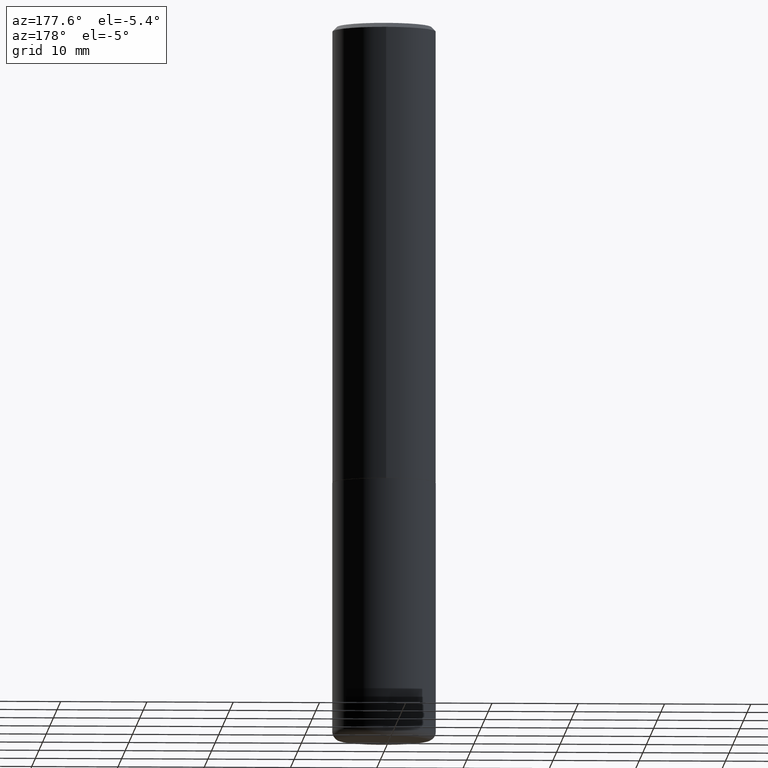
[diagram: clean part render]
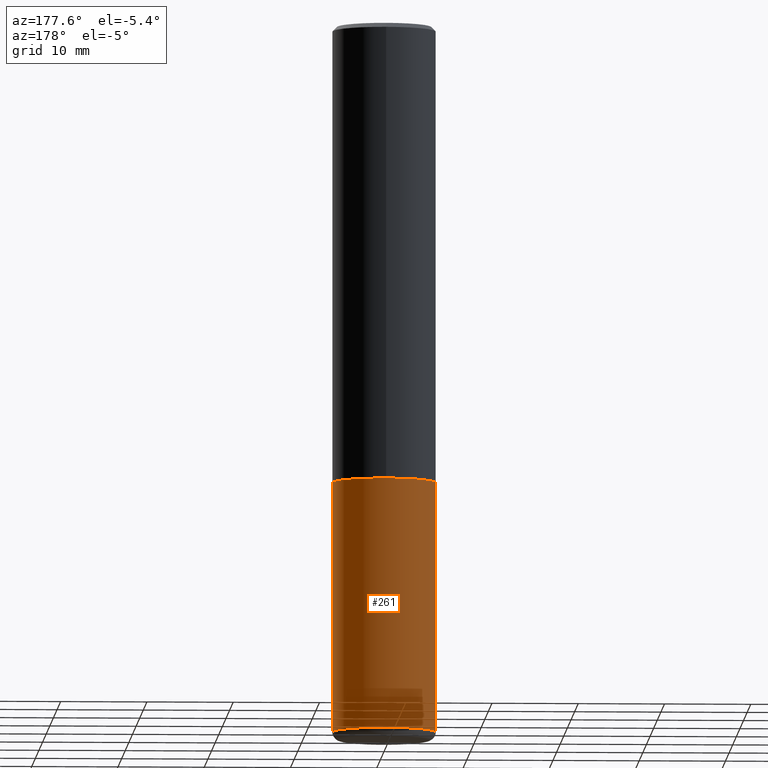
[diagram: same view with one face highlighted and labeled with its STEP entity id]
A machine part, auxiliary view. The second image highlights one B-rep face of the part: STEP entity #261.
In plain terms, the highlighted cylindrical surface (partial cylindrical patch) has radius 5.9995 mm, axis along (-0, 0, 1).
Its self-contained STEP definition (entity closure, byte-faithful):
#11 = DIRECTION ( 'NONE',  ( 1.000000000000000000, -6.982962677686265133E-15, 0.000000000000000000 ) ) ;
#20 = AXIS2_PLACEMENT_3D ( 'NONE', #286, #373, #220 ) ;
#24 = CARTESIAN_POINT ( 'NONE',  ( 0.2362000000000000210, -1.292092499065682375E-14, -3.228299999999999947 ) ) ;
#49 = DIRECTION ( 'NONE',  ( -2.445468806185136597E-29, 3.491481338843145583E-15, 1.000000000000000000 ) ) ;
#53 = VERTEX_POINT ( 'NONE', #88 ) ;
#63 = CARTESIAN_POINT ( 'NONE',  ( 0.2361999999999999933, -1.649375784469496131E-15, 1.151752954443000088E-29 ) ) ;
#65 = AXIS2_PLACEMENT_3D ( 'NONE', #91, #274, #11 ) ;
#67 = DIRECTION ( 'NONE',  ( -2.445468806185136877E-29, 3.491481338843145188E-15, 1.000000000000000000 ) ) ;
#69 = CARTESIAN_POINT ( 'NONE',  ( -0.2362000000000000210, -9.593247264321970832E-15, -3.228299999999999947 ) ) ;
#87 = CARTESIAN_POINT ( 'NONE',  ( -0.2361999999999999933, -7.600135142043360927E-15, -2.086600000000000232 ) ) ;
#88 = CARTESIAN_POINT ( 'NONE',  ( 0.2361999999999999933, -8.934700746099602364E-15, -2.086600000000000232 ) ) ;
#91 = CARTESIAN_POINT ( 'NONE',  ( 7.894706947007477118E-29, -1.127154920618732880E-14, -3.228299999999999947 ) ) ;
#94 = CARTESIAN_POINT ( 'NONE',  ( -0.2361999999999999933, 1.678301941865356591E-15, -1.161852468318208757E-29 ) ) ;
#104 = DIRECTION ( 'NONE',  ( -2.445468806185136877E-29, 3.491481338843145188E-15, 1.000000000000000000 ) ) ;
#117 = ORIENTED_EDGE ( 'NONE', *, *, #380, .F. ) ;
#134 = ORIENTED_EDGE ( 'NONE', *, *, #404, .F. ) ;
#167 = VECTOR ( 'NONE', #104, 39.37007874015748143 ) ;
#196 = EDGE_LOOP ( 'NONE', ( #327, #276, #134, #117 ) ) ;
#198 = CIRCLE ( 'NONE', #20, 0.2361999999999999933 ) ;
#220 = DIRECTION ( 'NONE',  ( 1.000000000000000000, -6.982962677686265133E-15, 0.000000000000000000 ) ) ;
#234 = FACE_OUTER_BOUND ( 'NONE', #196, .T. ) ;
#244 = AXIS2_PLACEMENT_3D ( 'NONE', #258, #49, #384 ) ;
#258 = CARTESIAN_POINT ( 'NONE',  ( 0.000000000000000000, 0.000000000000000000, 0.000000000000000000 ) ) ;
#261 = ADVANCED_FACE ( 'NONE', ( #234 ), #326, .T. ) ;
#263 = VERTEX_POINT ( 'NONE', #69 ) ;
#274 = DIRECTION ( 'NONE',  ( -2.445468806185136597E-29, 3.491481338843145583E-15, 1.000000000000000000 ) ) ;
#276 = ORIENTED_EDGE ( 'NONE', *, *, #386, .T. ) ;
#281 = LINE ( 'NONE', #63, #301 ) ;
#283 = EDGE_CURVE ( 'NONE', #395, #263, #399, .T. ) ;
#286 = CARTESIAN_POINT ( 'NONE',  ( 5.102715210985906276E-29, -7.285324961630107416E-15, -2.086600000000000232 ) ) ;
#301 = VECTOR ( 'NONE', #67, 39.37007874015748143 ) ;
#326 = CYLINDRICAL_SURFACE ( 'NONE', #244, 0.2361999999999999933 ) ;
#327 = ORIENTED_EDGE ( 'NONE', *, *, #283, .T. ) ;
#332 = VERTEX_POINT ( 'NONE', #87 ) ;
#373 = DIRECTION ( 'NONE',  ( -2.445468806185136597E-29, 3.491481338843145583E-15, 1.000000000000000000 ) ) ;
#380 = EDGE_CURVE ( 'NONE', #395, #53, #281, .T. ) ;
#384 = DIRECTION ( 'NONE',  ( 1.000000000000000000, -6.982962677686266711E-15, 4.876176775795936353E-29 ) ) ;
#386 = EDGE_CURVE ( 'NONE', #263, #332, #411, .T. ) ;
#395 = VERTEX_POINT ( 'NONE', #24 ) ;
#399 = CIRCLE ( 'NONE', #65, 0.2361999999999999933 ) ;
#404 = EDGE_CURVE ( 'NONE', #53, #332, #198, .T. ) ;
#411 = LINE ( 'NONE', #94, #167 ) ;